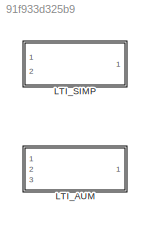
MODEL slx_91f933d325b9
KIND model
CONFIG AbsTol = auto
CONFIG EnableMultiTasking = off
CONFIG FixedStep = auto
CONFIG MaxStep = auto
CONFIG MinStep = auto
CONFIG RelTol = 1e-3
CONFIG SampleTimeConstraint = Unconstrained
CONFIG Solver = VariableStepAuto
CONFIG SolverName = VariableStepAuto
CONFIG StartTime = 0.0
CONFIG StopTime = 10.0
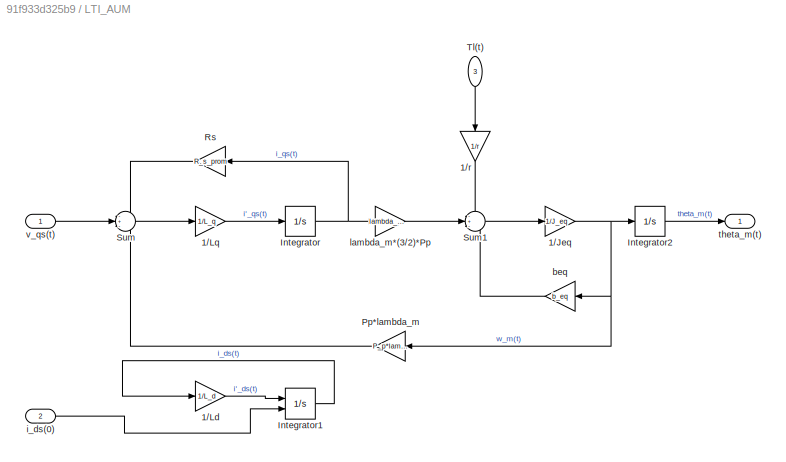
BLOCK [SubSystem] LTI_AUM
  Ports = [3, 1]
  RequestExecContextInheritance = off
BLOCK [Gain] LTI_AUM/1//Jeq
  Gain = 1/J_eq
  OutDataTypeStr = Inherit: Inherit via internal rule
  ParamDataTypeStr = Inherit: Inherit via internal rule
  SaturateOnIntegerOverflow = off
BLOCK [Gain] LTI_AUM/1//Ld
  Gain = 1/L_d
  OutDataTypeStr = Inherit: Inherit via internal rule
  ParamDataTypeStr = Inherit: Inherit via internal rule
  SaturateOnIntegerOverflow = off
BLOCK [Gain] LTI_AUM/1//Lq
  Gain = 1/L_q
  OutDataTypeStr = Inherit: Inherit via internal rule
  ParamDataTypeStr = Inherit: Inherit via internal rule
  SaturateOnIntegerOverflow = off
BLOCK [Gain] LTI_AUM/1//r
  Gain = 1/r
  OutDataTypeStr = Inherit: Inherit via internal rule
  ParamDataTypeStr = Inherit: Inherit via internal rule
  SaturateOnIntegerOverflow = off
BLOCK [Integrator] LTI_AUM/Integrator
  Ports = [1, 1]
BLOCK [Integrator] LTI_AUM/Integrator1
  InitialConditionSource = external
  Ports = [2, 1]
BLOCK [Integrator] LTI_AUM/Integrator2
  Ports = [1, 1]
BLOCK [Gain] LTI_AUM/Pp*lambda_m
  Gain = P_p*lambda_m
  OutDataTypeStr = Inherit: Inherit via internal rule
  ParamDataTypeStr = Inherit: Inherit via internal rule
  SaturateOnIntegerOverflow = off
BLOCK [Gain] LTI_AUM/Rs
  Gain = R_s_prom
  OutDataTypeStr = Inherit: Inherit via internal rule
  ParamDataTypeStr = Inherit: Inherit via internal rule
  SaturateOnIntegerOverflow = off
BLOCK [Sum] LTI_AUM/Sum
  IconShape = round
  InputSameDT = off
  Inputs = -+-
  OutDataTypeStr = Inherit: Inherit via internal rule
  Ports = [3, 1]
  SaturateOnIntegerOverflow = off
BLOCK [Sum] LTI_AUM/Sum1
  IconShape = round
  InputSameDT = off
  Inputs = -+-
  OutDataTypeStr = Inherit: Inherit via internal rule
  Ports = [3, 1]
  SaturateOnIntegerOverflow = off
BLOCK [Inport] LTI_AUM/Tl(t)
  IconDisplay = Port number
  Port = 3
BLOCK [Gain] LTI_AUM/beq
  Gain = b_eq
  OutDataTypeStr = Inherit: Inherit via internal rule
  ParamDataTypeStr = Inherit: Inherit via internal rule
  SaturateOnIntegerOverflow = off
BLOCK [Inport] LTI_AUM/i_ds(0)
  IconDisplay = Port number
  Port = 2
BLOCK [Gain] LTI_AUM/lambda_m*(3//2)*Pp
  Gain = lambda_m*(3/2)*P_p
  OutDataTypeStr = Inherit: Inherit via internal rule
  ParamDataTypeStr = Inherit: Inherit via internal rule
  SaturateOnIntegerOverflow = off
BLOCK [Outport] LTI_AUM/theta_m(t)
  IconDisplay = Port number
BLOCK [Inport] LTI_AUM/v_qs(t)
  IconDisplay = Port number
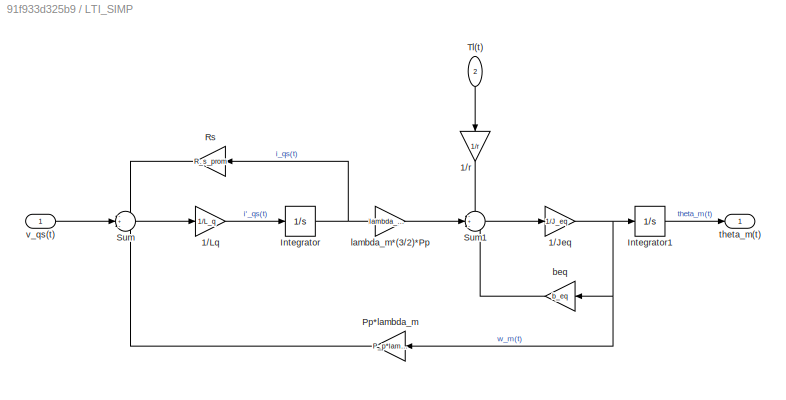
BLOCK [SubSystem] LTI_SIMP
  Ports = [2, 1]
  RequestExecContextInheritance = off
BLOCK [Gain] LTI_SIMP/1//Jeq
  Gain = 1/J_eq
  OutDataTypeStr = Inherit: Inherit via internal rule
  ParamDataTypeStr = Inherit: Inherit via internal rule
  SaturateOnIntegerOverflow = off
BLOCK [Gain] LTI_SIMP/1//Lq
  Gain = 1/L_q
  OutDataTypeStr = Inherit: Inherit via internal rule
  ParamDataTypeStr = Inherit: Inherit via internal rule
  SaturateOnIntegerOverflow = off
BLOCK [Gain] LTI_SIMP/1//r
  Gain = 1/r
  OutDataTypeStr = Inherit: Inherit via internal rule
  ParamDataTypeStr = Inherit: Inherit via internal rule
  SaturateOnIntegerOverflow = off
BLOCK [Integrator] LTI_SIMP/Integrator
  Ports = [1, 1]
BLOCK [Integrator] LTI_SIMP/Integrator1
  Ports = [1, 1]
BLOCK [Gain] LTI_SIMP/Pp*lambda_m
  Gain = P_p*lambda_m
  OutDataTypeStr = Inherit: Inherit via internal rule
  ParamDataTypeStr = Inherit: Inherit via internal rule
  SaturateOnIntegerOverflow = off
BLOCK [Gain] LTI_SIMP/Rs
  Gain = R_s_prom
  OutDataTypeStr = Inherit: Inherit via internal rule
  ParamDataTypeStr = Inherit: Inherit via internal rule
  SaturateOnIntegerOverflow = off
BLOCK [Sum] LTI_SIMP/Sum
  IconShape = round
  InputSameDT = off
  Inputs = -+-
  OutDataTypeStr = Inherit: Inherit via internal rule
  Ports = [3, 1]
  SaturateOnIntegerOverflow = off
BLOCK [Sum] LTI_SIMP/Sum1
  IconShape = round
  InputSameDT = off
  Inputs = -+-
  OutDataTypeStr = Inherit: Inherit via internal rule
  Ports = [3, 1]
  SaturateOnIntegerOverflow = off
BLOCK [Inport] LTI_SIMP/Tl(t)
  IconDisplay = Port number
  Port = 2
BLOCK [Gain] LTI_SIMP/beq
  Gain = b_eq
  OutDataTypeStr = Inherit: Inherit via internal rule
  ParamDataTypeStr = Inherit: Inherit via internal rule
  SaturateOnIntegerOverflow = off
BLOCK [Gain] LTI_SIMP/lambda_m*(3//2)*Pp
  Gain = lambda_m*(3/2)*P_p
  OutDataTypeStr = Inherit: Inherit via internal rule
  ParamDataTypeStr = Inherit: Inherit via internal rule
  SaturateOnIntegerOverflow = off
BLOCK [Outport] LTI_SIMP/theta_m(t)
  IconDisplay = Port number
BLOCK [Inport] LTI_SIMP/v_qs(t)
  IconDisplay = Port number
NET LTI_AUM/1//Jeq:1 -> LTI_AUM/Integrator2:1, LTI_AUM/Pp*lambda_m:1, LTI_AUM/beq:1
LINE LTI_AUM/1//Ld:1 -> LTI_AUM/Integrator1:1
LINE LTI_AUM/1//Lq:1 -> LTI_AUM/Integrator:1
LINE LTI_AUM/1//r:1 -> LTI_AUM/Sum1:1
LINE LTI_AUM/Integrator1:1 -> LTI_AUM/1//Ld:1
LINE LTI_AUM/Integrator2:1 -> LTI_AUM/theta_m(t):1
NET LTI_AUM/Integrator:1 -> LTI_AUM/Rs:1, LTI_AUM/lambda_m*(3//2)*Pp:1
LINE LTI_AUM/Pp*lambda_m:1 -> LTI_AUM/Sum:3
LINE LTI_AUM/Rs:1 -> LTI_AUM/Sum:1
LINE LTI_AUM/Sum1:1 -> LTI_AUM/1//Jeq:1
LINE LTI_AUM/Sum:1 -> LTI_AUM/1//Lq:1
LINE LTI_AUM/Tl(t):1 -> LTI_AUM/1//r:1
LINE LTI_AUM/beq:1 -> LTI_AUM/Sum1:3
LINE LTI_AUM/i_ds(0):1 -> LTI_AUM/Integrator1:2
LINE LTI_AUM/lambda_m*(3//2)*Pp:1 -> LTI_AUM/Sum1:2
LINE LTI_AUM/v_qs(t):1 -> LTI_AUM/Sum:2
NET LTI_SIMP/1//Jeq:1 -> LTI_SIMP/Integrator1:1, LTI_SIMP/Pp*lambda_m:1, LTI_SIMP/beq:1
LINE LTI_SIMP/1//Lq:1 -> LTI_SIMP/Integrator:1
LINE LTI_SIMP/1//r:1 -> LTI_SIMP/Sum1:1
LINE LTI_SIMP/Integrator1:1 -> LTI_SIMP/theta_m(t):1
NET LTI_SIMP/Integrator:1 -> LTI_SIMP/Rs:1, LTI_SIMP/lambda_m*(3//2)*Pp:1
LINE LTI_SIMP/Pp*lambda_m:1 -> LTI_SIMP/Sum:3
LINE LTI_SIMP/Rs:1 -> LTI_SIMP/Sum:1
LINE LTI_SIMP/Sum1:1 -> LTI_SIMP/1//Jeq:1
LINE LTI_SIMP/Sum:1 -> LTI_SIMP/1//Lq:1
LINE LTI_SIMP/Tl(t):1 -> LTI_SIMP/1//r:1
LINE LTI_SIMP/beq:1 -> LTI_SIMP/Sum1:3
LINE LTI_SIMP/lambda_m*(3//2)*Pp:1 -> LTI_SIMP/Sum1:2
LINE LTI_SIMP/v_qs(t):1 -> LTI_SIMP/Sum:2
note: NET lines group one-source signal fan-out (src -> all destinations, sorted); 1:1 wires keep LINE
